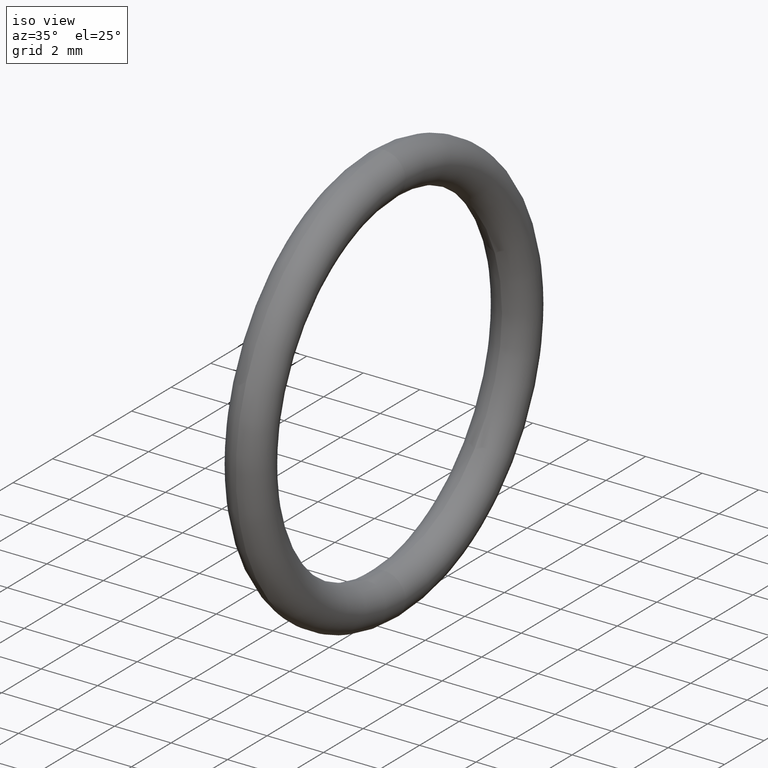
[diagram: clean part render]
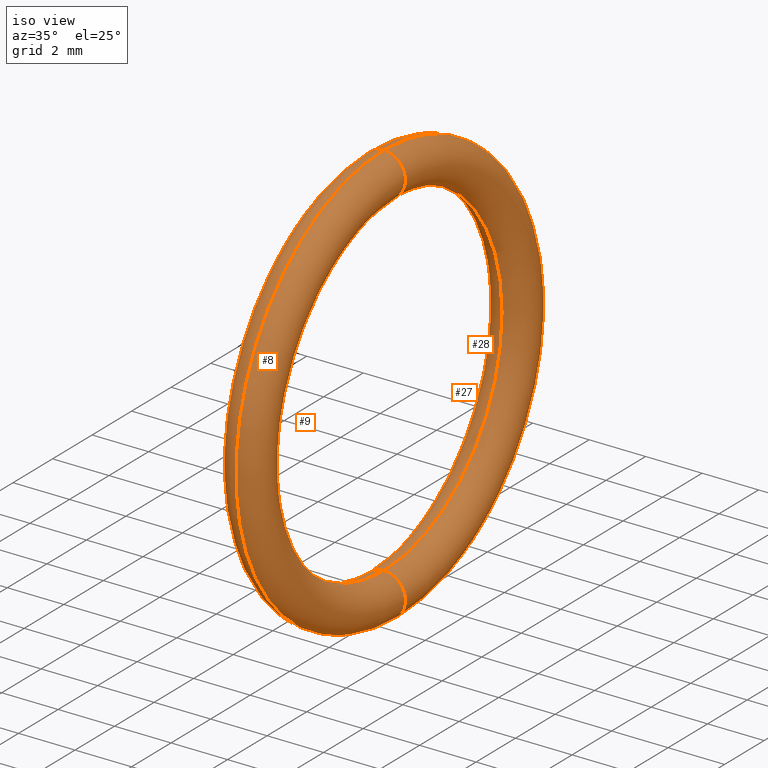
[diagram: same view with one multi-face feature highlighted, each face labeled with its STEP entity id]
A machine part, iso view. The highlighted faces form ONE feature: a constant-radius fillet chain: 4 tangent blend faces with common blend radius 0.762 mm. The faces share edges in the B-rep.
Their STEP definitions:
[1] entity #9 (Torus):
#4 = VERTEX_POINT ( 'NONE', #61 ) ;
#6 = ORIENTED_EDGE ( 'NONE', *, *, #35, .T. ) ;
#7 = ORIENTED_EDGE ( 'NONE', *, *, #41, .T. ) ;
#9 = ADVANCED_FACE ( 'NONE', ( #86 ), #43, .T. ) ;
#10 = EDGE_LOOP ( 'NONE', ( #37, #16, #6, #7 ) ) ;
#11 = EDGE_CURVE ( 'NONE', #4, #56, #50, .T. ) ;
#14 = VERTEX_POINT ( 'NONE', #45 ) ;
#16 = ORIENTED_EDGE ( 'NONE', *, *, #11, .F. ) ;
#35 = EDGE_CURVE ( 'NONE', #4, #44, #100, .T. ) ;
#37 = ORIENTED_EDGE ( 'NONE', *, *, #57, .F. ) ;
#41 = EDGE_CURVE ( 'NONE', #44, #14, #96, .T. ) ;
#43 = TOROIDAL_SURFACE ( 'NONE', #55, 0.2649999999999999600, 0.03000000000000000900 ) ;
#44 = VERTEX_POINT ( 'NONE', #142 ) ;
#45 = CARTESIAN_POINT ( 'NONE',  ( 0.1000000000000000500, 0.0000000000000000000, 0.2949999999999999800 ) ) ;
#46 = DIRECTION ( 'NONE',  ( 0.0000000000000000000, -1.224646799147353500E-016, 1.000000000000000000 ) ) ;
#47 = DIRECTION ( 'NONE',  ( 0.0000000000000000000, 1.000000000000000000, 1.224646799147353200E-016 ) ) ;
#48 = CARTESIAN_POINT ( 'NONE',  ( 0.1000000000000000500, 3.245314017740485600E-017, -0.2649999999999999600 ) ) ;
#49 = AXIS2_PLACEMENT_3D ( 'NONE', #48, #47, #46 ) ;
#50 = CIRCLE ( 'NONE', #49, 0.03000000000000002300 ) ;
#52 = DIRECTION ( 'NONE',  ( 0.0000000000000000000, 0.0000000000000000000, 1.000000000000000000 ) ) ;
#53 = DIRECTION ( 'NONE',  ( -1.000000000000000000, 0.0000000000000000000, 0.0000000000000000000 ) ) ;
#54 = CARTESIAN_POINT ( 'NONE',  ( 0.1000000000000000500, 0.0000000000000000000, 0.0000000000000000000 ) ) ;
#55 = AXIS2_PLACEMENT_3D ( 'NONE', #54, #53, #52 ) ;
#56 = VERTEX_POINT ( 'NONE', #141 ) ;
#57 = EDGE_CURVE ( 'NONE', #56, #14, #140, .T. ) ;
#61 = CARTESIAN_POINT ( 'NONE',  ( 0.1000000000000000500, 2.877919977996279200E-017, -0.2349999999999999600 ) ) ;
#86 = FACE_OUTER_BOUND ( 'NONE', #10, .T. ) ;
#94 = DIRECTION ( 'NONE',  ( 0.0000000000000000000, -1.000000000000000000, 0.0000000000000000000 ) ) ;
#95 = AXIS2_PLACEMENT_3D ( 'NONE', #101, #94, #143 ) ;
#96 = CIRCLE ( 'NONE', #95, 0.03000000000000002300 ) ;
#97 = DIRECTION ( 'NONE',  ( 0.0000000000000000000, 0.0000000000000000000, 1.000000000000000000 ) ) ;
#98 = DIRECTION ( 'NONE',  ( -1.000000000000000000, 0.0000000000000000000, 0.0000000000000000000 ) ) ;
#99 = AXIS2_PLACEMENT_3D ( 'NONE', #106, #98, #97 ) ;
#100 = CIRCLE ( 'NONE', #99, 0.2349999999999999600 ) ;
#101 = CARTESIAN_POINT ( 'NONE',  ( 0.1000000000000000500, 0.0000000000000000000, 0.2649999999999999600 ) ) ;
#106 = CARTESIAN_POINT ( 'NONE',  ( 0.1000000000000000500, 0.0000000000000000000, 0.0000000000000000000 ) ) ;
#136 = DIRECTION ( 'NONE',  ( 0.0000000000000000000, 0.0000000000000000000, 1.000000000000000000 ) ) ;
#137 = DIRECTION ( 'NONE',  ( -1.000000000000000000, 0.0000000000000000000, 0.0000000000000000000 ) ) ;
#138 = CARTESIAN_POINT ( 'NONE',  ( 0.1000000000000000500, 0.0000000000000000000, 0.0000000000000000000 ) ) ;
#139 = AXIS2_PLACEMENT_3D ( 'NONE', #138, #137, #136 ) ;
#140 = CIRCLE ( 'NONE', #139, 0.2949999999999999800 ) ;
#141 = CARTESIAN_POINT ( 'NONE',  ( 0.1000000000000000500, 3.612708057484692000E-017, -0.2949999999999999800 ) ) ;
#142 = CARTESIAN_POINT ( 'NONE',  ( 0.1000000000000000500, 0.0000000000000000000, 0.2349999999999999600 ) ) ;
#143 = DIRECTION ( 'NONE',  ( 0.0000000000000000000, 0.0000000000000000000, -1.000000000000000000 ) ) ;
[2] entity #28 (Torus):
#4 = VERTEX_POINT ( 'NONE', #61 ) ;
#11 = EDGE_CURVE ( 'NONE', #4, #56, #50, .T. ) ;
#12 = EDGE_LOOP ( 'NONE', ( #39, #40, #30, #36 ) ) ;
#14 = VERTEX_POINT ( 'NONE', #45 ) ;
#28 = ADVANCED_FACE ( 'NONE', ( #122 ), #117, .T. ) ;
#30 = ORIENTED_EDGE ( 'NONE', *, *, #33, .T. ) ;
#31 = EDGE_CURVE ( 'NONE', #14, #56, #111, .T. ) ;
#33 = EDGE_CURVE ( 'NONE', #44, #4, #105, .T. ) ;
#36 = ORIENTED_EDGE ( 'NONE', *, *, #11, .T. ) ;
#39 = ORIENTED_EDGE ( 'NONE', *, *, #31, .F. ) ;
#40 = ORIENTED_EDGE ( 'NONE', *, *, #41, .F. ) ;
#41 = EDGE_CURVE ( 'NONE', #44, #14, #96, .T. ) ;
#44 = VERTEX_POINT ( 'NONE', #142 ) ;
#45 = CARTESIAN_POINT ( 'NONE',  ( 0.1000000000000000500, 0.0000000000000000000, 0.2949999999999999800 ) ) ;
#46 = DIRECTION ( 'NONE',  ( 0.0000000000000000000, -1.224646799147353500E-016, 1.000000000000000000 ) ) ;
#47 = DIRECTION ( 'NONE',  ( 0.0000000000000000000, 1.000000000000000000, 1.224646799147353200E-016 ) ) ;
#48 = CARTESIAN_POINT ( 'NONE',  ( 0.1000000000000000500, 3.245314017740485600E-017, -0.2649999999999999600 ) ) ;
#49 = AXIS2_PLACEMENT_3D ( 'NONE', #48, #47, #46 ) ;
#50 = CIRCLE ( 'NONE', #49, 0.03000000000000002300 ) ;
#56 = VERTEX_POINT ( 'NONE', #141 ) ;
#61 = CARTESIAN_POINT ( 'NONE',  ( 0.1000000000000000500, 2.877919977996279200E-017, -0.2349999999999999600 ) ) ;
#94 = DIRECTION ( 'NONE',  ( 0.0000000000000000000, -1.000000000000000000, 0.0000000000000000000 ) ) ;
#95 = AXIS2_PLACEMENT_3D ( 'NONE', #101, #94, #143 ) ;
#96 = CIRCLE ( 'NONE', #95, 0.03000000000000002300 ) ;
#101 = CARTESIAN_POINT ( 'NONE',  ( 0.1000000000000000500, 0.0000000000000000000, 0.2649999999999999600 ) ) ;
#102 = DIRECTION ( 'NONE',  ( 0.0000000000000000000, 0.0000000000000000000, 1.000000000000000000 ) ) ;
#103 = DIRECTION ( 'NONE',  ( -1.000000000000000000, 0.0000000000000000000, 0.0000000000000000000 ) ) ;
#104 = AXIS2_PLACEMENT_3D ( 'NONE', #112, #103, #102 ) ;
#105 = CIRCLE ( 'NONE', #104, 0.2349999999999999600 ) ;
#107 = DIRECTION ( 'NONE',  ( 0.0000000000000000000, 0.0000000000000000000, 1.000000000000000000 ) ) ;
#108 = DIRECTION ( 'NONE',  ( -1.000000000000000000, 0.0000000000000000000, 0.0000000000000000000 ) ) ;
#109 = CARTESIAN_POINT ( 'NONE',  ( 0.1000000000000000500, 0.0000000000000000000, 0.0000000000000000000 ) ) ;
#110 = AXIS2_PLACEMENT_3D ( 'NONE', #109, #108, #107 ) ;
#111 = CIRCLE ( 'NONE', #110, 0.2949999999999999800 ) ;
#112 = CARTESIAN_POINT ( 'NONE',  ( 0.1000000000000000500, 0.0000000000000000000, 0.0000000000000000000 ) ) ;
#113 = DIRECTION ( 'NONE',  ( 0.0000000000000000000, 0.0000000000000000000, 1.000000000000000000 ) ) ;
#114 = DIRECTION ( 'NONE',  ( -1.000000000000000000, 0.0000000000000000000, 0.0000000000000000000 ) ) ;
#115 = CARTESIAN_POINT ( 'NONE',  ( 0.1000000000000000500, 0.0000000000000000000, 0.0000000000000000000 ) ) ;
#116 = AXIS2_PLACEMENT_3D ( 'NONE', #115, #114, #113 ) ;
#117 = TOROIDAL_SURFACE ( 'NONE', #116, 0.2649999999999999600, 0.03000000000000000900 ) ;
#122 = FACE_OUTER_BOUND ( 'NONE', #12, .T. ) ;
#141 = CARTESIAN_POINT ( 'NONE',  ( 0.1000000000000000500, 3.612708057484692000E-017, -0.2949999999999999800 ) ) ;
#142 = CARTESIAN_POINT ( 'NONE',  ( 0.1000000000000000500, 0.0000000000000000000, 0.2349999999999999600 ) ) ;
#143 = DIRECTION ( 'NONE',  ( 0.0000000000000000000, 0.0000000000000000000, -1.000000000000000000 ) ) ;
[3] entity #27 (Torus):
#4 = VERTEX_POINT ( 'NONE', #61 ) ;
#14 = VERTEX_POINT ( 'NONE', #45 ) ;
#15 = EDGE_CURVE ( 'NONE', #14, #44, #23, .T. ) ;
#17 = CIRCLE ( 'NONE', #126, 0.03000000000000002300 ) ;
#18 = FACE_OUTER_BOUND ( 'NONE', #34, .T. ) ;
#19 = DIRECTION ( 'NONE',  ( 0.0000000000000000000, 0.0000000000000000000, -1.000000000000000000 ) ) ;
#20 = DIRECTION ( 'NONE',  ( 0.0000000000000000000, -1.000000000000000000, 0.0000000000000000000 ) ) ;
#21 = CARTESIAN_POINT ( 'NONE',  ( 0.1000000000000000500, 0.0000000000000000000, 0.2649999999999999600 ) ) ;
#22 = AXIS2_PLACEMENT_3D ( 'NONE', #21, #20, #19 ) ;
#23 = CIRCLE ( 'NONE', #22, 0.03000000000000002300 ) ;
#24 = CARTESIAN_POINT ( 'NONE',  ( 0.1000000000000000500, 3.245314017740485600E-017, -0.2649999999999999600 ) ) ;
#25 = EDGE_CURVE ( 'NONE', #56, #4, #17, .T. ) ;
#27 = ADVANCED_FACE ( 'NONE', ( #18 ), #121, .T. ) ;
#31 = EDGE_CURVE ( 'NONE', #14, #56, #111, .T. ) ;
#32 = ORIENTED_EDGE ( 'NONE', *, *, #25, .T. ) ;
#33 = EDGE_CURVE ( 'NONE', #44, #4, #105, .T. ) ;
#34 = EDGE_LOOP ( 'NONE', ( #146, #145, #32, #144 ) ) ;
#44 = VERTEX_POINT ( 'NONE', #142 ) ;
#45 = CARTESIAN_POINT ( 'NONE',  ( 0.1000000000000000500, 0.0000000000000000000, 0.2949999999999999800 ) ) ;
#56 = VERTEX_POINT ( 'NONE', #141 ) ;
#61 = CARTESIAN_POINT ( 'NONE',  ( 0.1000000000000000500, 2.877919977996279200E-017, -0.2349999999999999600 ) ) ;
#102 = DIRECTION ( 'NONE',  ( 0.0000000000000000000, 0.0000000000000000000, 1.000000000000000000 ) ) ;
#103 = DIRECTION ( 'NONE',  ( -1.000000000000000000, 0.0000000000000000000, 0.0000000000000000000 ) ) ;
#104 = AXIS2_PLACEMENT_3D ( 'NONE', #112, #103, #102 ) ;
#105 = CIRCLE ( 'NONE', #104, 0.2349999999999999600 ) ;
#107 = DIRECTION ( 'NONE',  ( 0.0000000000000000000, 0.0000000000000000000, 1.000000000000000000 ) ) ;
#108 = DIRECTION ( 'NONE',  ( -1.000000000000000000, 0.0000000000000000000, 0.0000000000000000000 ) ) ;
#109 = CARTESIAN_POINT ( 'NONE',  ( 0.1000000000000000500, 0.0000000000000000000, 0.0000000000000000000 ) ) ;
#110 = AXIS2_PLACEMENT_3D ( 'NONE', #109, #108, #107 ) ;
#111 = CIRCLE ( 'NONE', #110, 0.2949999999999999800 ) ;
#112 = CARTESIAN_POINT ( 'NONE',  ( 0.1000000000000000500, 0.0000000000000000000, 0.0000000000000000000 ) ) ;
#118 = DIRECTION ( 'NONE',  ( 0.0000000000000000000, 0.0000000000000000000, 1.000000000000000000 ) ) ;
#119 = DIRECTION ( 'NONE',  ( -1.000000000000000000, 0.0000000000000000000, 0.0000000000000000000 ) ) ;
#120 = AXIS2_PLACEMENT_3D ( 'NONE', #123, #119, #118 ) ;
#121 = TOROIDAL_SURFACE ( 'NONE', #120, 0.2649999999999999600, 0.03000000000000000900 ) ;
#123 = CARTESIAN_POINT ( 'NONE',  ( 0.1000000000000000500, 0.0000000000000000000, 0.0000000000000000000 ) ) ;
#124 = DIRECTION ( 'NONE',  ( 0.0000000000000000000, -1.224646799147353500E-016, 1.000000000000000000 ) ) ;
#125 = DIRECTION ( 'NONE',  ( 0.0000000000000000000, 1.000000000000000000, 1.224646799147353200E-016 ) ) ;
#126 = AXIS2_PLACEMENT_3D ( 'NONE', #24, #125, #124 ) ;
#141 = CARTESIAN_POINT ( 'NONE',  ( 0.1000000000000000500, 3.612708057484692000E-017, -0.2949999999999999800 ) ) ;
#142 = CARTESIAN_POINT ( 'NONE',  ( 0.1000000000000000500, 0.0000000000000000000, 0.2349999999999999600 ) ) ;
#144 = ORIENTED_EDGE ( 'NONE', *, *, #33, .F. ) ;
#145 = ORIENTED_EDGE ( 'NONE', *, *, #31, .T. ) ;
#146 = ORIENTED_EDGE ( 'NONE', *, *, #15, .F. ) ;
[4] entity #8 (Torus):
#4 = VERTEX_POINT ( 'NONE', #61 ) ;
#5 = CARTESIAN_POINT ( 'NONE',  ( 0.1000000000000000500, 0.0000000000000000000, 0.0000000000000000000 ) ) ;
#8 = ADVANCED_FACE ( 'NONE', ( #60 ), #59, .T. ) ;
#14 = VERTEX_POINT ( 'NONE', #45 ) ;
#15 = EDGE_CURVE ( 'NONE', #14, #44, #23, .T. ) ;
#17 = CIRCLE ( 'NONE', #126, 0.03000000000000002300 ) ;
#19 = DIRECTION ( 'NONE',  ( 0.0000000000000000000, 0.0000000000000000000, -1.000000000000000000 ) ) ;
#20 = DIRECTION ( 'NONE',  ( 0.0000000000000000000, -1.000000000000000000, 0.0000000000000000000 ) ) ;
#21 = CARTESIAN_POINT ( 'NONE',  ( 0.1000000000000000500, 0.0000000000000000000, 0.2649999999999999600 ) ) ;
#22 = AXIS2_PLACEMENT_3D ( 'NONE', #21, #20, #19 ) ;
#23 = CIRCLE ( 'NONE', #22, 0.03000000000000002300 ) ;
#24 = CARTESIAN_POINT ( 'NONE',  ( 0.1000000000000000500, 3.245314017740485600E-017, -0.2649999999999999600 ) ) ;
#25 = EDGE_CURVE ( 'NONE', #56, #4, #17, .T. ) ;
#26 = ORIENTED_EDGE ( 'NONE', *, *, #57, .T. ) ;
#35 = EDGE_CURVE ( 'NONE', #4, #44, #100, .T. ) ;
#42 = ORIENTED_EDGE ( 'NONE', *, *, #15, .T. ) ;
#44 = VERTEX_POINT ( 'NONE', #142 ) ;
#45 = CARTESIAN_POINT ( 'NONE',  ( 0.1000000000000000500, 0.0000000000000000000, 0.2949999999999999800 ) ) ;
#51 = EDGE_LOOP ( 'NONE', ( #82, #26, #42, #58 ) ) ;
#56 = VERTEX_POINT ( 'NONE', #141 ) ;
#57 = EDGE_CURVE ( 'NONE', #56, #14, #140, .T. ) ;
#58 = ORIENTED_EDGE ( 'NONE', *, *, #35, .F. ) ;
#59 = TOROIDAL_SURFACE ( 'NONE', #85, 0.2649999999999999600, 0.03000000000000000900 ) ;
#60 = FACE_OUTER_BOUND ( 'NONE', #51, .T. ) ;
#61 = CARTESIAN_POINT ( 'NONE',  ( 0.1000000000000000500, 2.877919977996279200E-017, -0.2349999999999999600 ) ) ;
#82 = ORIENTED_EDGE ( 'NONE', *, *, #25, .F. ) ;
#83 = DIRECTION ( 'NONE',  ( 0.0000000000000000000, 0.0000000000000000000, 1.000000000000000000 ) ) ;
#84 = DIRECTION ( 'NONE',  ( -1.000000000000000000, 0.0000000000000000000, 0.0000000000000000000 ) ) ;
#85 = AXIS2_PLACEMENT_3D ( 'NONE', #5, #84, #83 ) ;
#97 = DIRECTION ( 'NONE',  ( 0.0000000000000000000, 0.0000000000000000000, 1.000000000000000000 ) ) ;
#98 = DIRECTION ( 'NONE',  ( -1.000000000000000000, 0.0000000000000000000, 0.0000000000000000000 ) ) ;
#99 = AXIS2_PLACEMENT_3D ( 'NONE', #106, #98, #97 ) ;
#100 = CIRCLE ( 'NONE', #99, 0.2349999999999999600 ) ;
#106 = CARTESIAN_POINT ( 'NONE',  ( 0.1000000000000000500, 0.0000000000000000000, 0.0000000000000000000 ) ) ;
#124 = DIRECTION ( 'NONE',  ( 0.0000000000000000000, -1.224646799147353500E-016, 1.000000000000000000 ) ) ;
#125 = DIRECTION ( 'NONE',  ( 0.0000000000000000000, 1.000000000000000000, 1.224646799147353200E-016 ) ) ;
#126 = AXIS2_PLACEMENT_3D ( 'NONE', #24, #125, #124 ) ;
#136 = DIRECTION ( 'NONE',  ( 0.0000000000000000000, 0.0000000000000000000, 1.000000000000000000 ) ) ;
#137 = DIRECTION ( 'NONE',  ( -1.000000000000000000, 0.0000000000000000000, 0.0000000000000000000 ) ) ;
#138 = CARTESIAN_POINT ( 'NONE',  ( 0.1000000000000000500, 0.0000000000000000000, 0.0000000000000000000 ) ) ;
#139 = AXIS2_PLACEMENT_3D ( 'NONE', #138, #137, #136 ) ;
#140 = CIRCLE ( 'NONE', #139, 0.2949999999999999800 ) ;
#141 = CARTESIAN_POINT ( 'NONE',  ( 0.1000000000000000500, 3.612708057484692000E-017, -0.2949999999999999800 ) ) ;
#142 = CARTESIAN_POINT ( 'NONE',  ( 0.1000000000000000500, 0.0000000000000000000, 0.2349999999999999600 ) ) ;